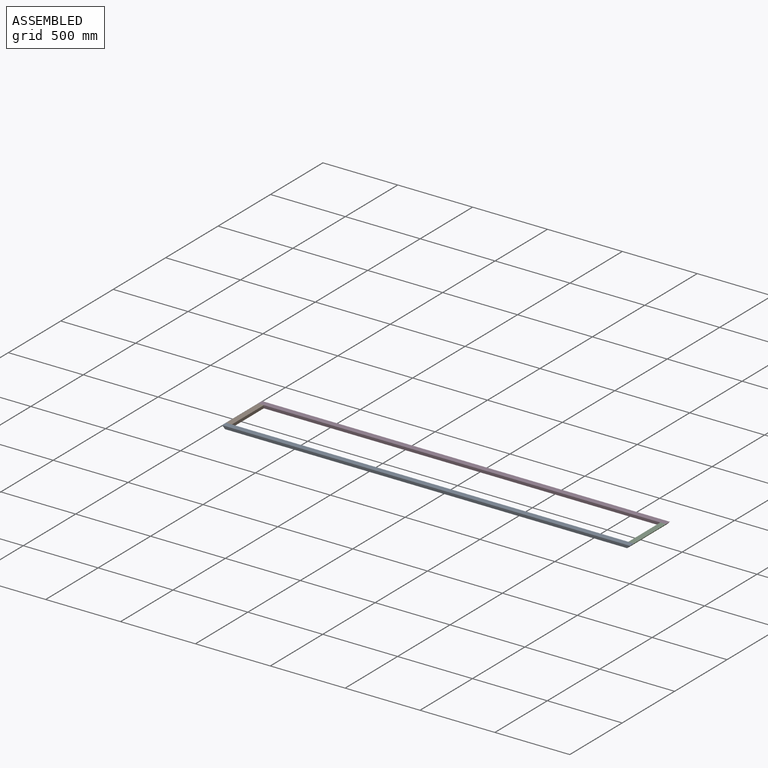
[diagram: assembled view]
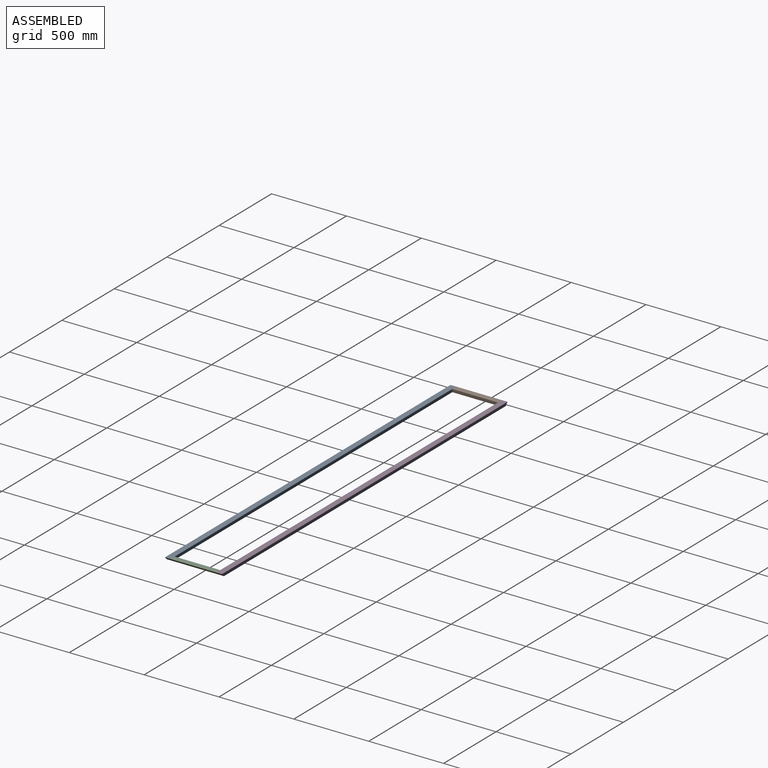
[diagram: assembled view, second angle]
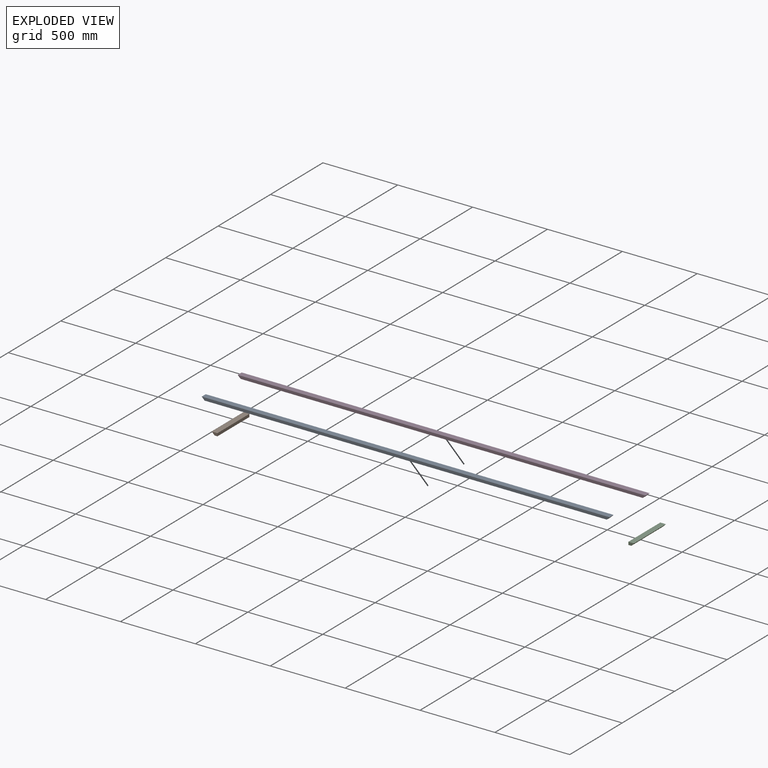
[diagram: exploded view]
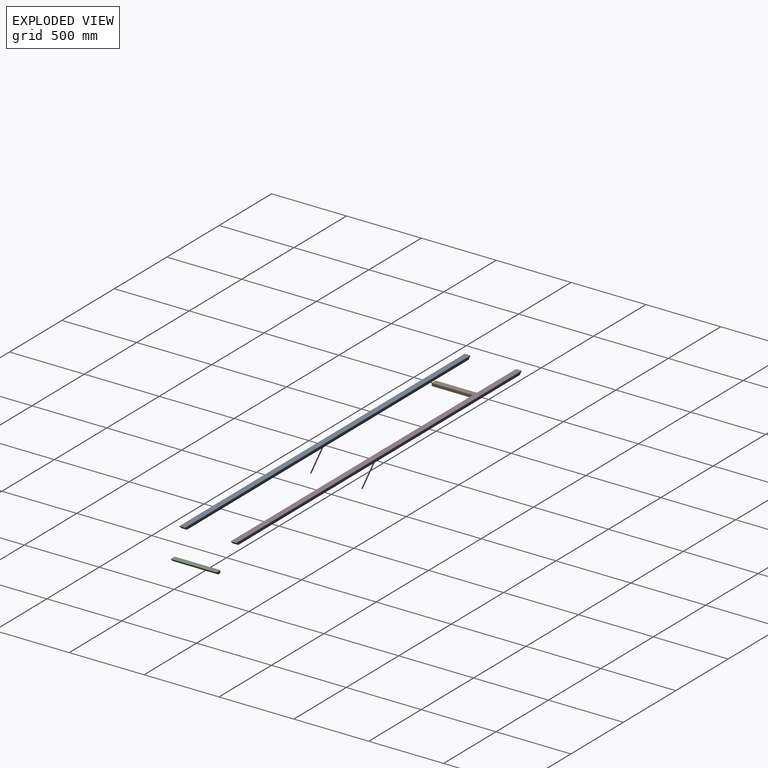
[diagram: exploded view, second angle]
ASSEMBLY  parts=4 mates=9
PART A: 6 faces, bbox 2724.2x38.1x19.1 mm
  f0: plane 2724.15x19.05mm, normal (0,-1,0), area 51532.2mm2, adj f1,f3,f4,f5
  f1: plane 2686.05x38.1mm, normal (0,0,-1), area 102338.5mm2, adj f0,f2,f4,f5
  f2: plane 2724.15x19.05mm, normal (0,1,0), area 51532.2mm2, adj f1,f3,f4,f5
  f3: plane 2724.15x38.1mm, normal (0,0,1), area 103790.1mm2, adj f0,f2,f4,f5
  f4: plane 38.1x19.05mm, normal (-0.71,0,-0.71), area 1026.4mm2, adj f0,f1,f2,f3
  f5: plane 38.1x19.05mm, normal (0.71,0,-0.71), area 1026.4mm2, adj f0,f1,f2,f3
PART B: 6 faces, bbox 38.1x304.8x19.1 mm
  f0: plane 38.1x19.05mm, normal (0,-1,0), area 544.4mm2, adj f1,f2,f4,f5
  f1: plane 304.8x19.05mm, normal (0,0,-1), area 5806.4mm2, adj f0,f2,f3,f5
  f2: plane 304.8x19.05mm, normal (1,0,0), area 5806.4mm2, adj f0,f1,f3,f4
  f3: plane 38.1x19.05mm, normal (0,1,0), area 544.4mm2, adj f1,f2,f4,f5
  f4: plane 304.8x38.1mm, normal (0,0,1), area 11612.9mm2, adj f0,f2,f3,f5
  f5: plane 304.8x19.05mm, normal (-0.71,0,-0.71), area 8211.5mm2, adj f0,f1,f3,f4
PART C: same geometry as B
PART D: same geometry as A
PLACE A t=(-2928.85,295.71,-124.19)mm
PLACE B t=(-2928.85,333.81,-124.19)mm
PLACE C rot(axis=(0,0,1),180deg) t=(-204.7,638.61,-124.19)mm
PLACE D t=(-2928.85,638.61,-124.19)mm
MATE planar B.f3 <-> D.f0  axis (0,1,0) through (-2905.56,638.61,-113.61)mm
MATE planar C.f5 <-> D.f5  axis (0.71,0,-0.71) through (-214.22,486.21,-114.67)mm
MATE planar B.f4 <-> D.f3  axis (0,0,1) through (-2909.8,486.21,-105.14)mm
MATE planar B.f5 <-> D.f4  axis (-0.71,0,-0.71) through (-2919.32,486.21,-114.67)mm
MATE planar C.f0 <-> D.f0  axis (0,1,0) through (-227.98,638.61,-113.61)mm
MATE planar A.f5 <-> C.f5  axis (0.71,0,-0.71) through (-214.22,314.76,-114.67)mm
MATE planar C.f4 <-> D.f3  axis (0,0,1) through (-223.75,486.21,-105.14)mm
MATE planar C.f3 <-> A.f2  axis (0,-1,0) through (-227.98,333.81,-113.61)mm
MATE planar A.f3 <-> C.f4  axis (0,0,1) through (-1566.77,314.76,-105.14)mm
